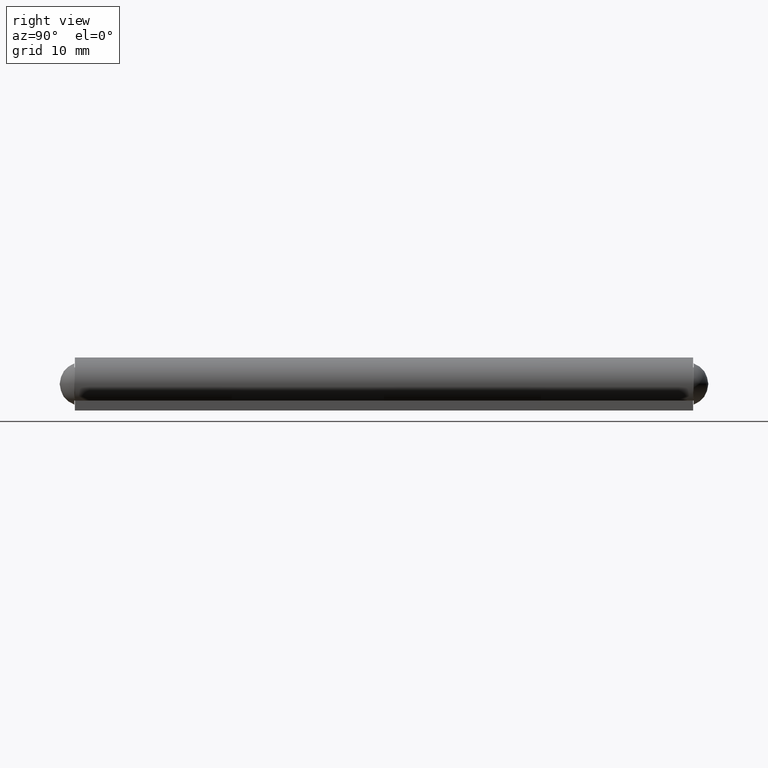
[diagram: clean part render]
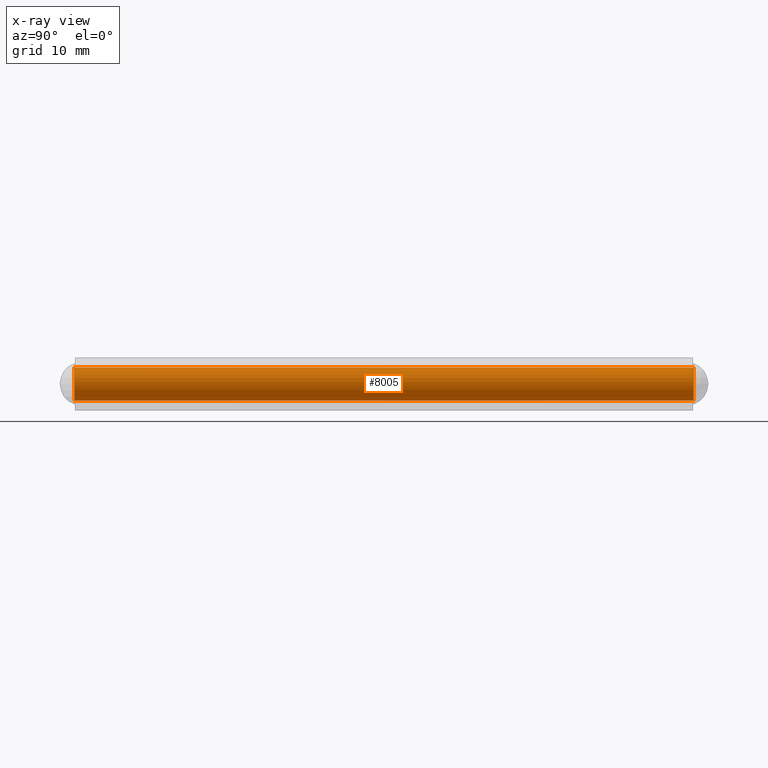
[diagram: x-ray — body ghosted, one internal face saturated and labeled with its STEP entity id]
A machine part, right view, then the same camera in x-ray: the body is ghosted and one INTERNAL B-rep face — a face not visible from any outside direction — is saturated and labeled: STEP entity #8005.
In plain terms, the highlighted cylindrical surface (bore or boss wall) has radius 1.7 mm, axis along (-0, -1, -0).
Its self-contained STEP definition (entity closure, byte-faithful):
#274 = DIRECTION ( 'NONE',  ( -0.000000000000000000, 1.000000000000000000, -0.000000000000000000 ) ) ;
#376 = CARTESIAN_POINT ( 'NONE',  ( 0.000000000000000000, 31.55000000000000071, 1.699999999999999956 ) ) ;
#1581 = DIRECTION ( 'NONE',  ( 0.000000000000000000, 1.000000000000000000, 0.000000000000000000 ) ) ;
#2098 = DIRECTION ( 'NONE',  ( 0.000000000000000000, 0.000000000000000000, -1.000000000000000000 ) ) ;
#2188 = FACE_OUTER_BOUND ( 'NONE', #6283, .T. ) ;
#2321 = CYLINDRICAL_SURFACE ( 'NONE', #3718, 1.699999999999999956 ) ;
#2772 = AXIS2_PLACEMENT_3D ( 'NONE', #8002, #1581, #6278 ) ;
#2859 = EDGE_LOOP ( 'NONE', ( #11417 ) ) ;
#2971 = VERTEX_POINT ( 'NONE', #8533 ) ;
#3627 = EDGE_CURVE ( 'NONE', #2971, #2971, #4390, .T. ) ;
#3718 = AXIS2_PLACEMENT_3D ( 'NONE', #4873, #11107, #2098 ) ;
#3939 = ORIENTED_EDGE ( 'NONE', *, *, #3627, .T. ) ;
#4390 = CIRCLE ( 'NONE', #5910, 1.699999999999999956 ) ;
#4664 = CIRCLE ( 'NONE', #2772, 1.699999999999999956 ) ;
#4873 = CARTESIAN_POINT ( 'NONE',  ( 0.000000000000000000, 31.55000000000000071, 0.000000000000000000 ) ) ;
#5910 = AXIS2_PLACEMENT_3D ( 'NONE', #6518, #274, #10275 ) ;
#5945 = EDGE_CURVE ( 'NONE', #7208, #7208, #4664, .T. ) ;
#6278 = DIRECTION ( 'NONE',  ( 0.000000000000000000, 0.000000000000000000, 1.000000000000000000 ) ) ;
#6283 = EDGE_LOOP ( 'NONE', ( #3939 ) ) ;
#6310 = FACE_OUTER_BOUND ( 'NONE', #2859, .T. ) ;
#6518 = CARTESIAN_POINT ( 'NONE',  ( 0.000000000000000000, -31.55000000000000071, 0.000000000000000000 ) ) ;
#7208 = VERTEX_POINT ( 'NONE', #376 ) ;
#8002 = CARTESIAN_POINT ( 'NONE',  ( 0.000000000000000000, 31.55000000000000071, 0.000000000000000000 ) ) ;
#8005 = ADVANCED_FACE ( 'NONE', ( #6310, #2188 ), #2321, .T. ) ;
#8533 = CARTESIAN_POINT ( 'NONE',  ( 0.000000000000000000, -31.55000000000000071, 1.699999999999999956 ) ) ;
#10275 = DIRECTION ( 'NONE',  ( 0.000000000000000000, 0.000000000000000000, 1.000000000000000000 ) ) ;
#11107 = DIRECTION ( 'NONE',  ( -0.000000000000000000, -1.000000000000000000, -0.000000000000000000 ) ) ;
#11417 = ORIENTED_EDGE ( 'NONE', *, *, #5945, .F. ) ;